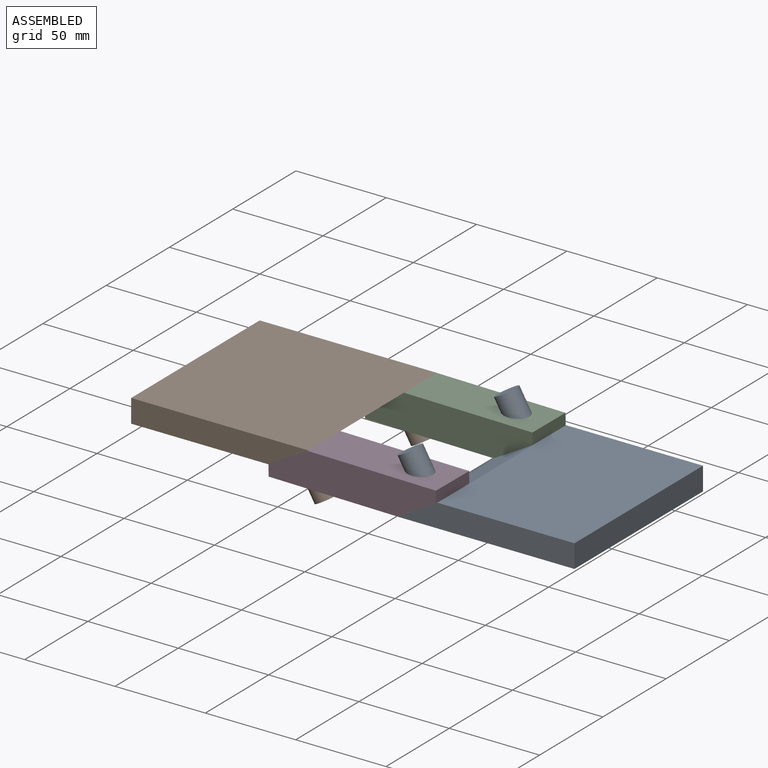
[diagram: assembled view]
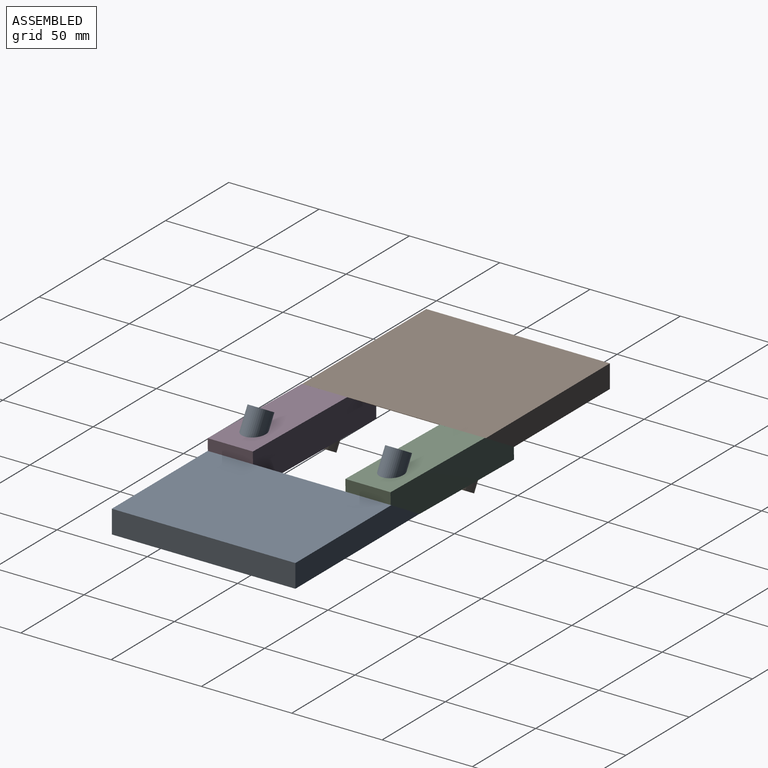
[diagram: assembled view, second angle]
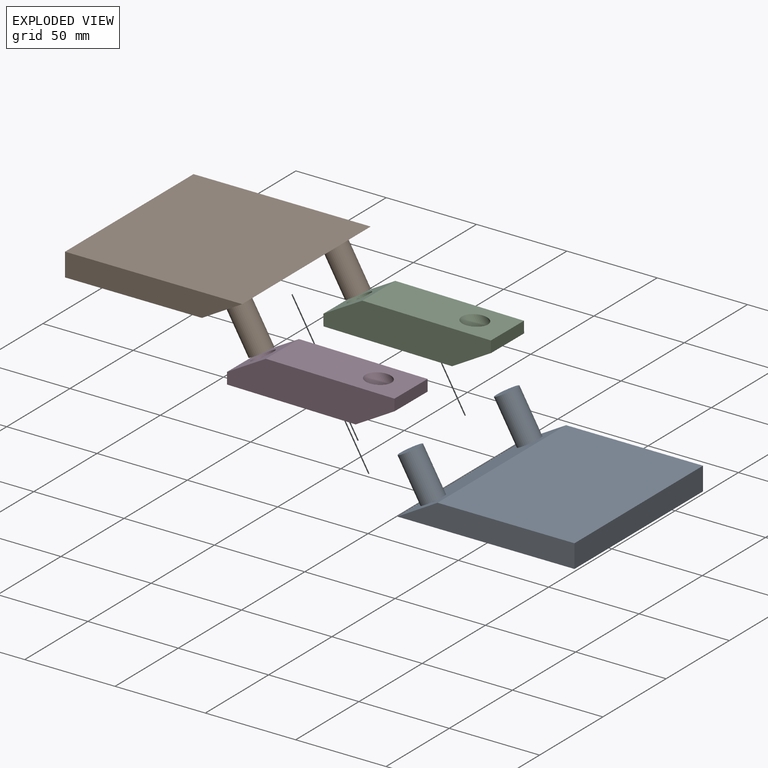
[diagram: exploded view]
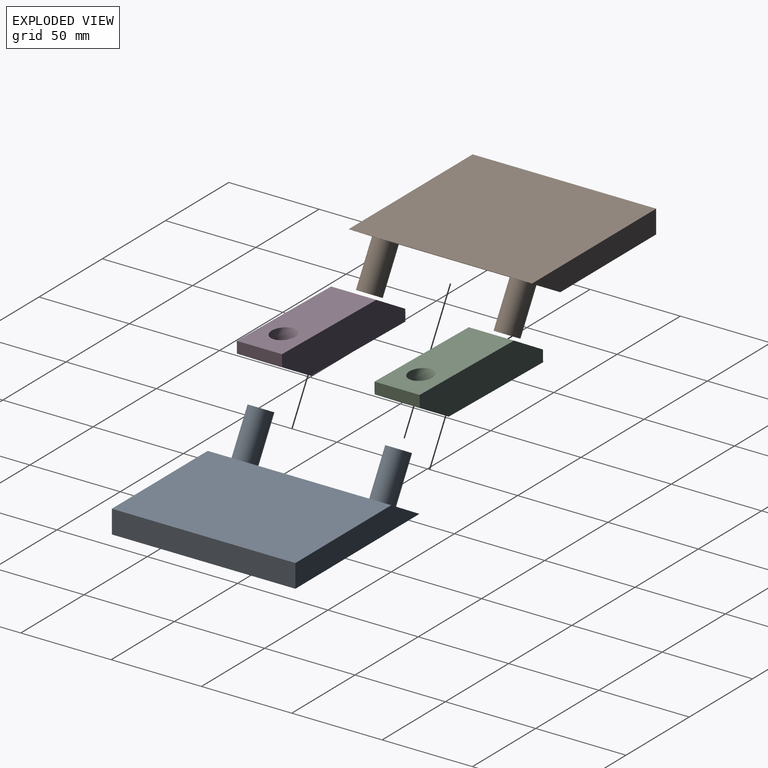
[diagram: exploded view, second angle]
ASSEMBLY  parts=4 mates=4
PART A: 10 faces, bbox 105.3x101.6x31.5 mm
  f0: plane 101.6x22.28mm, normal (-0.5,0,0.87), area 2360.9mm2, adj f1,f3,f4,f5,f6,f8
  f1: plane 101.6x98.07mm, normal (0,0,-1), area 9964.1mm2, adj f0,f2,f4,f5
  f2: plane 101.6x12.87mm, normal (1,0,0), area 1307.1mm2, adj f1,f3,f4,f5
  f3: plane 101.6x75.79mm, normal (0,0,1), area 7700mm2, adj f0,f2,f4,f5
  f4: plane 98.07x12.87mm, normal (0,-1,0), area 1118.4mm2, adj f0,f1,f2,f3
  f5: plane 98.07x12.87mm, normal (0,1,0), area 1118.4mm2, adj f0,f1,f2,f3
  f6: cylinder r=6.35mm len=28.35mm, axis (0.5,0,-0.87), area 1013.4mm2, adj f0,f7
  f7: plane 12.7x11mm, normal (-0.5,0,0.87), area 126.7mm2, adj f6
  f8: cylinder r=6.35mm len=28.35mm, axis (0.5,0,-0.87), area 1013.4mm2, adj f0,f9
  f9: plane 12.7x11mm, normal (-0.5,0,0.87), area 126.7mm2, adj f8
PART B: same geometry as A
PART C: 10 faces, bbox 95.9x26.9x33.3 mm
  f0: plane 73.86x26.94mm, normal (0,0,-1), area 1690.5mm2, adj f1,f5,f6,f7,f9
  f1: plane 25.4x22mm, normal (0.5,0,-0.87), area 518.5mm2, adj f0,f2,f6,f7,f8
  f2: plane 25.4x6.35mm, normal (1,0,0), area 161.3mm2, adj f1,f3,f6,f7
  f3: plane 73.86x26.94mm, normal (0,0,1), area 1690.5mm2, adj f2,f4,f6,f7,f8
  f4: plane 25.4x22mm, normal (-0.5,0,0.87), area 518.5mm2, adj f3,f5,f6,f7,f9
  f5: plane 25.4x6.35mm, normal (-1,0,0), area 161.3mm2, adj f0,f4,f6,f7
  f6: plane 94.31x19.05mm, normal (0,-1,0), area 1517.3mm2, adj f0,f1,f2,f3,f4,f5
  f7: plane 94.31x19.05mm, normal (0,1,0), area 1517.3mm2, adj f0,f1,f2,f3,f4,f5
  f8: cylinder r=6.35mm len=22.23mm, axis (0.5,0,-0.87), area 585.1mm2, adj f1,f3
  f9: cylinder r=6.35mm len=22.23mm, axis (-0.5,0,0.87), area 585.1mm2, adj f0,f4
PART D: same geometry as C
PLACE A t=(20.72,45.15,-24.72)mm fixed
PLACE B rot(axis=(0,1,0),180deg) t=(-29.58,46.67,-5.66)mm
PLACE C rot(axis=(0.5,0,-0.87),1.5deg) t=(21.01,45.47,-24.55)mm
PLACE D rot(axis=(0.5,0,-0.87),1.5deg) t=(21.01,-30.73,-24.55)mm
MATE revolute C.f9 <-> B.f6  axis (-0.5,0,0.87) through (-40.58,33.97,-12.01)mm
MATE revolute D.f8 <-> A.f8  axis (0.5,0,-0.87) through (31.72,-43.75,-18.37)mm
MATE revolute C.f8 <-> A.f6  axis (0.5,0,-0.87) through (31.72,32.45,-18.37)mm
MATE revolute D.f9 <-> B.f8  axis (-0.5,0,0.87) through (-40.58,-42.23,-12.01)mm
